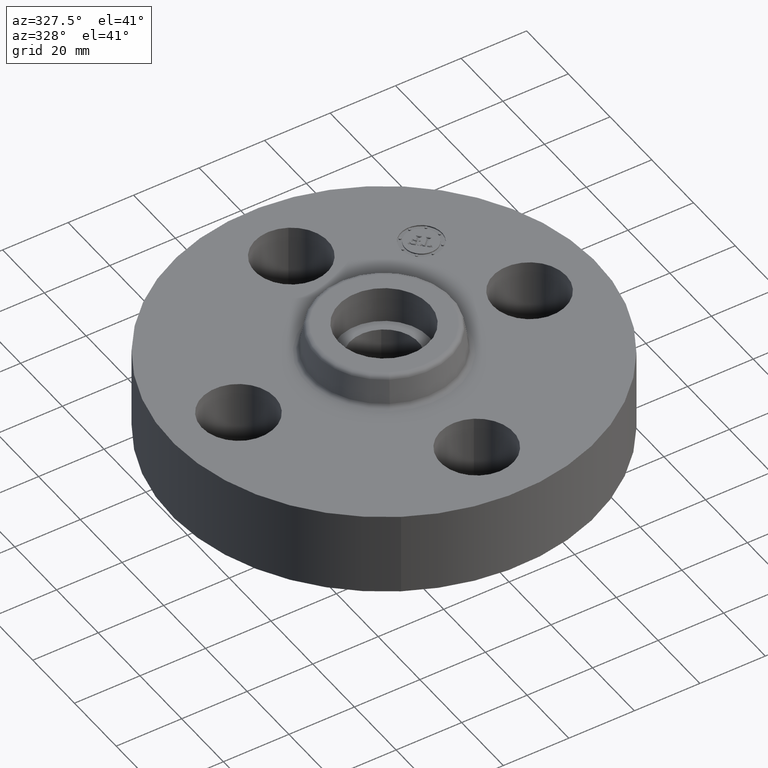
[diagram: clean part render]
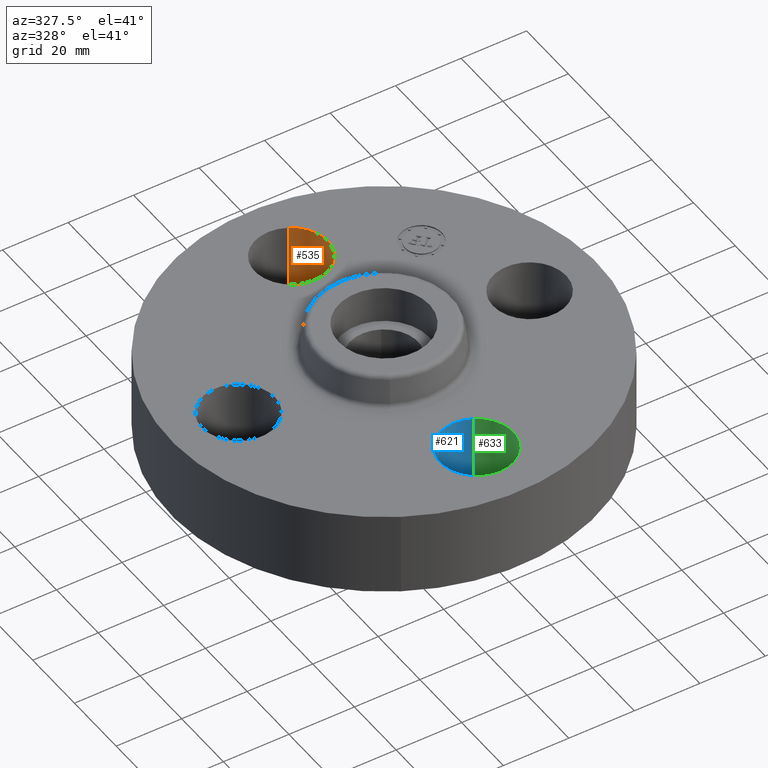
[diagram: same view with three faces highlighted in distinct colors, each labeled with its STEP entity id]
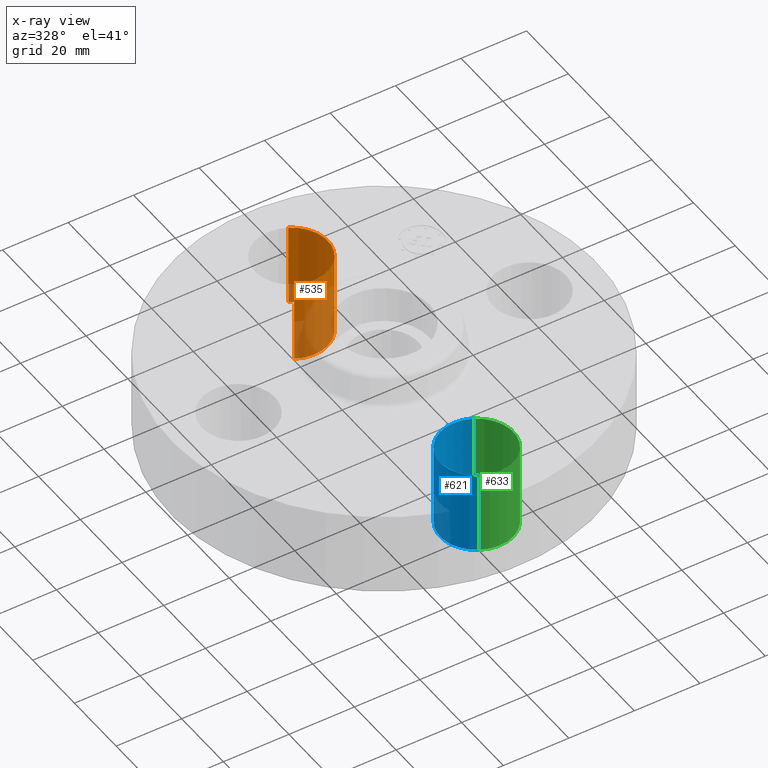
[diagram: x-ray of the same camera — body ghosted, the three highlighted faces saturated]
A machine part, auxiliary view with three faces highlighted in distinct colors.
The next image is the same camera in x-ray (body ghosted, the three faces saturated) — at least one of them is partly hidden behind the body in this view.
Their STEP definitions:

[orange] entity #535 — the highlighted cylindrical surface (partial cylindrical patch) has radius 11.176 mm, axis along (0, 0, -1).
#283=AXIS2_PLACEMENT_3D('Circle Axis2P3D',#281,#282,$) ;
#508=AXIS2_PLACEMENT_3D('Cylinder Axis2P3D',#505,#506,#507) ;
#526=AXIS2_PLACEMENT_3D('Circle Axis2P3D',#524,#525,$) ;
#276=CARTESIAN_POINT('Vertex',(-0.210947236987,1.36386367277,0.)) ;
#278=CARTESIAN_POINT('Vertex',(0.210947236987,2.13613632724,-1.39870617276E-016)) ;
#281=CARTESIAN_POINT('Axis2P3D Location',(-3.1470888887E-016,1.75000000001,0.)) ;
#505=CARTESIAN_POINT('Axis2P3D Location',(-3.21469784777E-016,1.75000000001,0.99606299213)) ;
#510=CARTESIAN_POINT('Line Origine',(0.210947236987,2.13613632724,0.500000000002)) ;
#514=CARTESIAN_POINT('Vertex',(0.210947236987,2.13613632724,1.)) ;
#517=CARTESIAN_POINT('Line Origine',(-0.210947236987,1.36386367277,0.500000000002)) ;
#521=CARTESIAN_POINT('Vertex',(-0.210947236987,1.36386367277,1.)) ;
#524=CARTESIAN_POINT('Axis2P3D Location',(-3.21469784777E-016,1.75000000001,1.)) ;
#282=DIRECTION('Axis2P3D Direction',(0.,0.,-0.0393700787402)) ;
#506=DIRECTION('Axis2P3D Direction',(0.,0.,-0.0393700787402)) ;
#507=DIRECTION('Axis2P3D XDirection',(-0.0188750212049,-0.0345504945626,-0.)) ;
#511=DIRECTION('Vector Direction',(0.,0.,-0.0393700787402)) ;
#518=DIRECTION('Vector Direction',(0.,0.,-0.0393700787402)) ;
#525=DIRECTION('Axis2P3D Direction',(0.,0.,-0.0393700787402)) ;
#512=VECTOR('Line Direction',#511,0.0393700787402) ;
#519=VECTOR('Line Direction',#518,0.0393700787402) ;
#530=ORIENTED_EDGE('',*,*,#516,.F.) ;
#531=ORIENTED_EDGE('',*,*,#285,.T.) ;
#532=ORIENTED_EDGE('',*,*,#523,.T.) ;
#533=ORIENTED_EDGE('',*,*,#528,.F.) ;
#535=ADVANCED_FACE('PartBody',(#534),#509,.F.) ;
#284=CIRCLE('generated circle',#283,0.440000000002) ;
#527=CIRCLE('generated circle',#526,0.440000000002) ;
#509=CYLINDRICAL_SURFACE('generated cylinder',#508,0.440000000002) ;
#285=EDGE_CURVE('',#279,#277,#284,.T.) ;
#516=EDGE_CURVE('',#279,#515,#513,.F.) ;
#523=EDGE_CURVE('',#277,#522,#520,.F.) ;
#528=EDGE_CURVE('',#515,#522,#527,.T.) ;
#529=EDGE_LOOP('',(#530,#531,#532,#533)) ;
#534=FACE_OUTER_BOUND('',#529,.T.) ;
#513=LINE('Line',#510,#512) ;
#520=LINE('Line',#517,#519) ;
#277=VERTEX_POINT('',#276) ;
#279=VERTEX_POINT('',#278) ;
#515=VERTEX_POINT('',#514) ;
#522=VERTEX_POINT('',#521) ;

[blue] entity #621 — the highlighted cylindrical surface (partial cylindrical patch) has radius 11.176 mm, axis along (0, -0, -1).
#247=AXIS2_PLACEMENT_3D('Circle Axis2P3D',#245,#246,$) ;
#594=AXIS2_PLACEMENT_3D('Cylinder Axis2P3D',#591,#592,#593) ;
#612=AXIS2_PLACEMENT_3D('Circle Axis2P3D',#610,#611,$) ;
#240=CARTESIAN_POINT('Vertex',(0.210947236987,-1.36386367277,0.)) ;
#242=CARTESIAN_POINT('Vertex',(-0.210947236987,-2.13613632724,-1.39870617276E-016)) ;
#245=CARTESIAN_POINT('Axis2P3D Location',(3.49676543189E-017,-1.75000000001,0.)) ;
#591=CARTESIAN_POINT('Axis2P3D Location',(1.07156594926E-016,-1.75000000001,0.99606299213)) ;
#596=CARTESIAN_POINT('Line Origine',(-0.210947236987,-2.13613632724,0.500000000002)) ;
#600=CARTESIAN_POINT('Vertex',(-0.210947236987,-2.13613632724,1.)) ;
#603=CARTESIAN_POINT('Line Origine',(0.210947236987,-1.36386367277,0.500000000002)) ;
#607=CARTESIAN_POINT('Vertex',(0.210947236987,-1.36386367277,1.)) ;
#610=CARTESIAN_POINT('Axis2P3D Location',(1.07156594926E-016,-1.75000000001,1.)) ;
#246=DIRECTION('Axis2P3D Direction',(0.,0.,-0.0393700787402)) ;
#592=DIRECTION('Axis2P3D Direction',(0.,-0.,-0.0393700787402)) ;
#593=DIRECTION('Axis2P3D XDirection',(0.0188750212049,0.0345504945626,-0.)) ;
#597=DIRECTION('Vector Direction',(0.,0.,-0.0393700787402)) ;
#604=DIRECTION('Vector Direction',(0.,0.,-0.0393700787402)) ;
#611=DIRECTION('Axis2P3D Direction',(0.,-0.,-0.0393700787402)) ;
#598=VECTOR('Line Direction',#597,0.0393700787402) ;
#605=VECTOR('Line Direction',#604,0.0393700787402) ;
#616=ORIENTED_EDGE('',*,*,#602,.F.) ;
#617=ORIENTED_EDGE('',*,*,#249,.T.) ;
#618=ORIENTED_EDGE('',*,*,#609,.T.) ;
#619=ORIENTED_EDGE('',*,*,#614,.F.) ;
#621=ADVANCED_FACE('PartBody',(#620),#595,.F.) ;
#248=CIRCLE('generated circle',#247,0.440000000002) ;
#613=CIRCLE('generated circle',#612,0.440000000002) ;
#595=CYLINDRICAL_SURFACE('generated cylinder',#594,0.440000000002) ;
#249=EDGE_CURVE('',#243,#241,#248,.T.) ;
#602=EDGE_CURVE('',#243,#601,#599,.F.) ;
#609=EDGE_CURVE('',#241,#608,#606,.F.) ;
#614=EDGE_CURVE('',#601,#608,#613,.T.) ;
#615=EDGE_LOOP('',(#616,#617,#618,#619)) ;
#620=FACE_OUTER_BOUND('',#615,.T.) ;
#599=LINE('Line',#596,#598) ;
#606=LINE('Line',#603,#605) ;
#241=VERTEX_POINT('',#240) ;
#243=VERTEX_POINT('',#242) ;
#601=VERTEX_POINT('',#600) ;
#608=VERTEX_POINT('',#607) ;

[green] entity #633 — the highlighted cylindrical surface (partial cylindrical patch) has radius 11.176 mm, axis along (0, -0, -1).
#238=AXIS2_PLACEMENT_3D('Circle Axis2P3D',#236,#237,$) ;
#594=AXIS2_PLACEMENT_3D('Cylinder Axis2P3D',#591,#592,#593) ;
#624=AXIS2_PLACEMENT_3D('Circle Axis2P3D',#622,#623,$) ;
#236=CARTESIAN_POINT('Axis2P3D Location',(3.84644197508E-016,-1.75000000001,0.)) ;
#240=CARTESIAN_POINT('Vertex',(0.210947236987,-1.36386367277,0.)) ;
#242=CARTESIAN_POINT('Vertex',(-0.210947236987,-2.13613632724,-1.39870617276E-016)) ;
#591=CARTESIAN_POINT('Axis2P3D Location',(1.07156594926E-016,-1.75000000001,0.99606299213)) ;
#596=CARTESIAN_POINT('Line Origine',(-0.210947236987,-2.13613632724,0.500000000002)) ;
#600=CARTESIAN_POINT('Vertex',(-0.210947236987,-2.13613632724,1.)) ;
#603=CARTESIAN_POINT('Line Origine',(0.210947236987,-1.36386367277,0.500000000002)) ;
#607=CARTESIAN_POINT('Vertex',(0.210947236987,-1.36386367277,1.)) ;
#622=CARTESIAN_POINT('Axis2P3D Location',(1.07156594926E-016,-1.75000000001,1.)) ;
#237=DIRECTION('Axis2P3D Direction',(0.,0.,-0.0393700787402)) ;
#592=DIRECTION('Axis2P3D Direction',(0.,-0.,-0.0393700787402)) ;
#593=DIRECTION('Axis2P3D XDirection',(0.0188750212049,0.0345504945626,-0.)) ;
#597=DIRECTION('Vector Direction',(0.,0.,-0.0393700787402)) ;
#604=DIRECTION('Vector Direction',(0.,0.,-0.0393700787402)) ;
#623=DIRECTION('Axis2P3D Direction',(0.,-0.,-0.0393700787402)) ;
#598=VECTOR('Line Direction',#597,0.0393700787402) ;
#605=VECTOR('Line Direction',#604,0.0393700787402) ;
#628=ORIENTED_EDGE('',*,*,#609,.F.) ;
#629=ORIENTED_EDGE('',*,*,#244,.T.) ;
#630=ORIENTED_EDGE('',*,*,#602,.T.) ;
#631=ORIENTED_EDGE('',*,*,#626,.F.) ;
#633=ADVANCED_FACE('PartBody',(#632),#595,.F.) ;
#239=CIRCLE('generated circle',#238,0.440000000002) ;
#625=CIRCLE('generated circle',#624,0.440000000002) ;
#595=CYLINDRICAL_SURFACE('generated cylinder',#594,0.440000000002) ;
#244=EDGE_CURVE('',#241,#243,#239,.T.) ;
#602=EDGE_CURVE('',#243,#601,#599,.F.) ;
#609=EDGE_CURVE('',#241,#608,#606,.F.) ;
#626=EDGE_CURVE('',#608,#601,#625,.T.) ;
#627=EDGE_LOOP('',(#628,#629,#630,#631)) ;
#632=FACE_OUTER_BOUND('',#627,.T.) ;
#599=LINE('Line',#596,#598) ;
#606=LINE('Line',#603,#605) ;
#241=VERTEX_POINT('',#240) ;
#243=VERTEX_POINT('',#242) ;
#601=VERTEX_POINT('',#600) ;
#608=VERTEX_POINT('',#607) ;